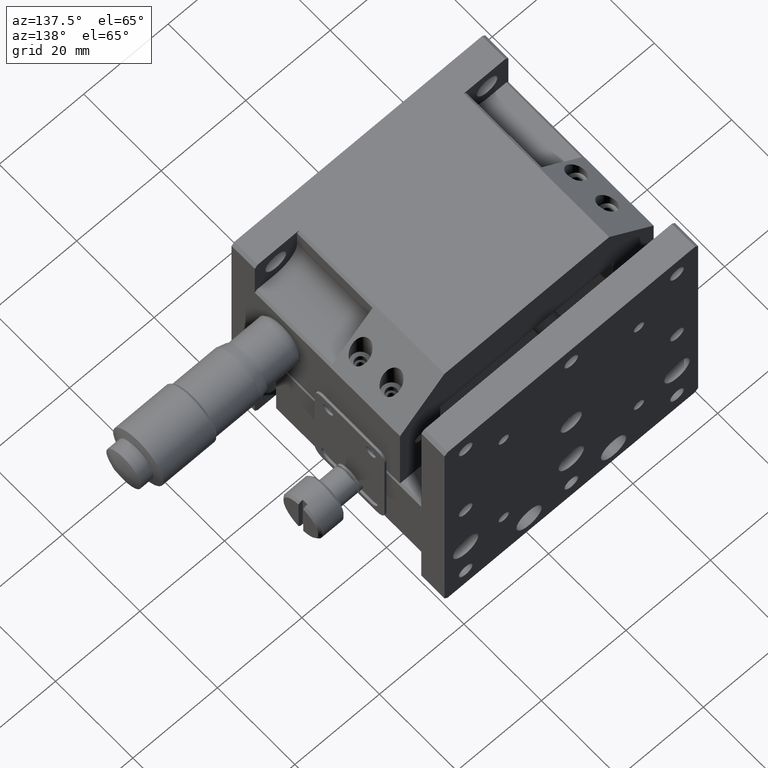
[diagram: clean part render]
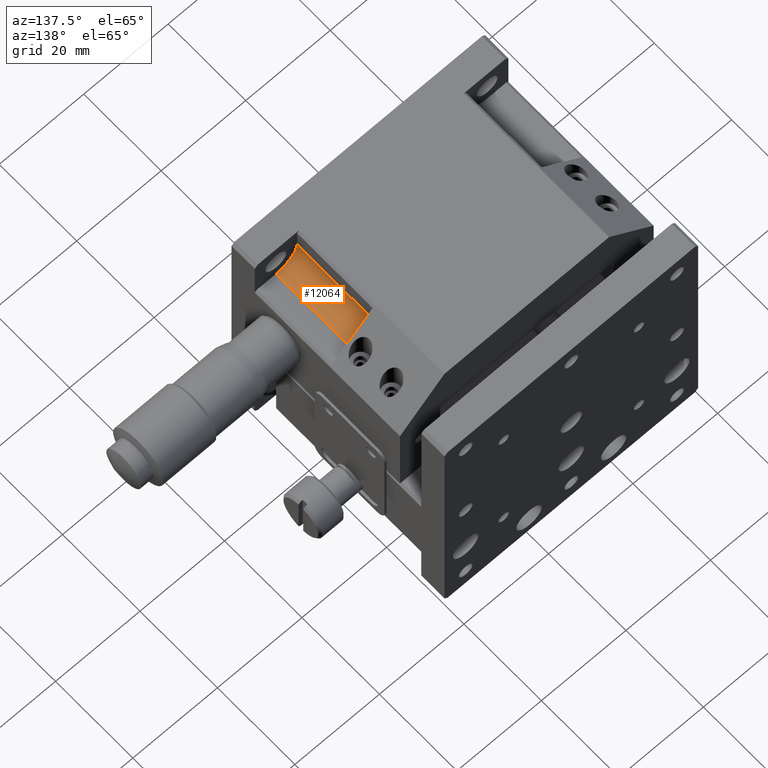
[diagram: same view with one face highlighted and labeled with its STEP entity id]
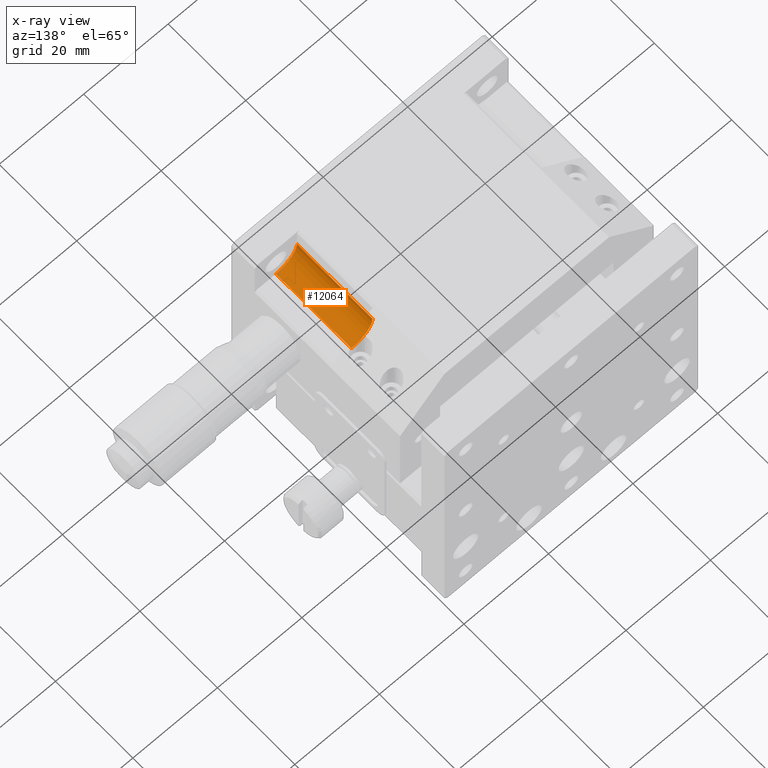
[diagram: x-ray of the same camera — body ghosted, the highlighted face saturated]
A machine part, auxiliary view. The second image highlights one B-rep face of the part: STEP entity #12064.
The next image is the same camera in x-ray: the body ghosted, the highlighted face saturated — about 0% of this face is hidden behind the body in this view.
In plain terms, the highlighted cylindrical surface (edge-blend (fillet) strip) has radius 5 mm, axis along (0, -1, 0).
Its self-contained STEP definition (entity closure, byte-faithful):
#262 = CARTESIAN_POINT ( 'NONE',  ( 50.00000000000000000, 5.999999999999998224, -5.000000000000004441 ) ) ;
#301 = DIRECTION ( 'NONE',  ( 0.000000000000000000, 0.000000000000000000, -1.000000000000000000 ) ) ;
#310 = CARTESIAN_POINT ( 'NONE',  ( 50.00000000000000000, 25.50000000000000355, -5.000000000000004441 ) ) ;
#676 = CIRCLE ( 'NONE', #5611, 4.999999999999999112 ) ;
#1144 = VERTEX_POINT ( 'NONE', #262 ) ;
#1326 = DIRECTION ( 'NONE',  ( 0.000000000000000000, 0.000000000000000000, -1.000000000000000000 ) ) ;
#1511 = AXIS2_PLACEMENT_3D ( 'NONE', #8948, #7099, #1326 ) ;
#1584 = VERTEX_POINT ( 'NONE', #6153 ) ;
#1692 = DIRECTION ( 'NONE',  ( -0.000000000000000000, 1.000000000000000000, 0.000000000000000000 ) ) ;
#1813 = CARTESIAN_POINT ( 'NONE',  ( 50.00000000000000000, 25.50000000000000355, -5.000000000000000000 ) ) ;
#2874 = EDGE_CURVE ( 'NONE', #1584, #4282, #5683, .T. ) ;
#3822 = CARTESIAN_POINT ( 'NONE',  ( 55.00000000000000000, 25.50000000000000355, -10.00000000000000888 ) ) ;
#4168 = AXIS2_PLACEMENT_3D ( 'NONE', #11454, #6952, #301 ) ;
#4282 = VERTEX_POINT ( 'NONE', #6097 ) ;
#4664 = VECTOR ( 'NONE', #1692, 1000.000000000000000 ) ;
#4999 = FACE_OUTER_BOUND ( 'NONE', #10189, .T. ) ;
#5387 = LINE ( 'NONE', #1813, #4664 ) ;
#5433 = VECTOR ( 'NONE', #11396, 1000.000000000000000 ) ;
#5611 = AXIS2_PLACEMENT_3D ( 'NONE', #11791, #6191, #10816 ) ;
#5683 = LINE ( 'NONE', #3822, #5433 ) ;
#5911 = CYLINDRICAL_SURFACE ( 'NONE', #4168, 4.999999999999999112 ) ;
#5993 = VERTEX_POINT ( 'NONE', #310 ) ;
#6097 = CARTESIAN_POINT ( 'NONE',  ( 55.00000000000000000, 5.999999999999998224, -10.00000000000000533 ) ) ;
#6153 = CARTESIAN_POINT ( 'NONE',  ( 55.00000000000000000, 25.50000000000000355, -10.00000000000000533 ) ) ;
#6191 = DIRECTION ( 'NONE',  ( 0.000000000000000000, -1.000000000000000000, 0.000000000000000000 ) ) ;
#6809 = CIRCLE ( 'NONE', #1511, 4.999999999999999112 ) ;
#6952 = DIRECTION ( 'NONE',  ( 0.000000000000000000, -1.000000000000000000, 0.000000000000000000 ) ) ;
#6961 = ORIENTED_EDGE ( 'NONE', *, *, #2874, .F. ) ;
#7099 = DIRECTION ( 'NONE',  ( -0.000000000000000000, 1.000000000000000000, -0.000000000000000000 ) ) ;
#7493 = ORIENTED_EDGE ( 'NONE', *, *, #7727, .F. ) ;
#7727 = EDGE_CURVE ( 'NONE', #5993, #1584, #676, .T. ) ;
#8948 = CARTESIAN_POINT ( 'NONE',  ( 55.00000000000000000, 5.999999999999998224, -5.000000000000009770 ) ) ;
#9332 = EDGE_CURVE ( 'NONE', #4282, #1144, #6809, .T. ) ;
#9459 = EDGE_CURVE ( 'NONE', #1144, #5993, #5387, .T. ) ;
#9885 = ORIENTED_EDGE ( 'NONE', *, *, #9459, .F. ) ;
#10189 = EDGE_LOOP ( 'NONE', ( #6961, #7493, #9885, #11915 ) ) ;
#10816 = DIRECTION ( 'NONE',  ( 0.000000000000000000, 0.000000000000000000, -1.000000000000000000 ) ) ;
#11396 = DIRECTION ( 'NONE',  ( 0.000000000000000000, -1.000000000000000000, 0.000000000000000000 ) ) ;
#11454 = CARTESIAN_POINT ( 'NONE',  ( 55.00000000000000000, 25.50000000000000355, -5.000000000000009770 ) ) ;
#11791 = CARTESIAN_POINT ( 'NONE',  ( 55.00000000000000000, 25.50000000000000355, -5.000000000000009770 ) ) ;
#11915 = ORIENTED_EDGE ( 'NONE', *, *, #9332, .F. ) ;
#12064 = ADVANCED_FACE ( 'NONE', ( #4999 ), #5911, .F. ) ;